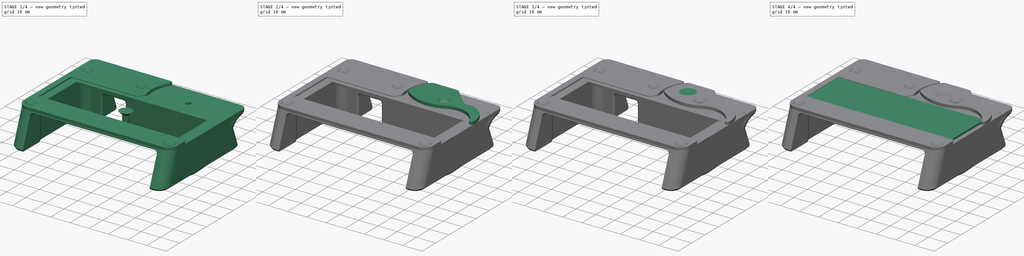
[diagram: build sequence overview — one tinted view per stage of 4, left to right]
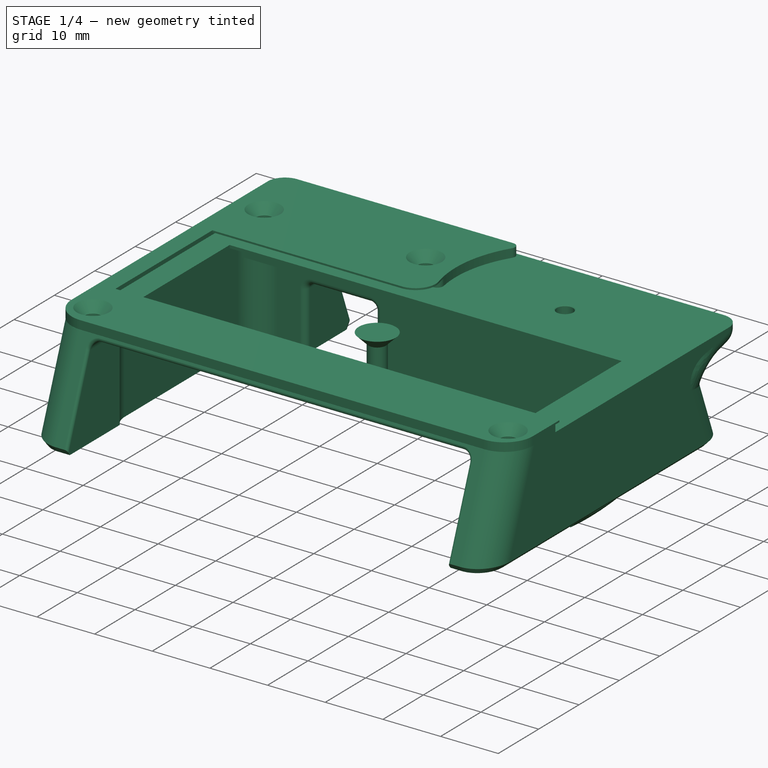
[diagram: stage 1 of 4 — iso view after this stage's code; geometry added in this stage tinted green]
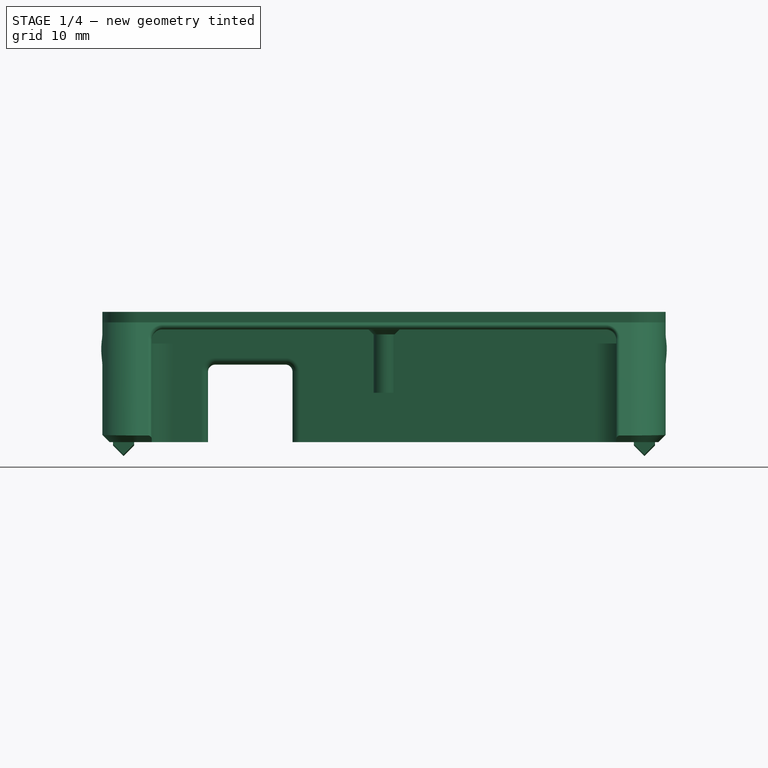
[diagram: stage 1 of 4 — front view after this stage's code; geometry added in this stage tinted green]
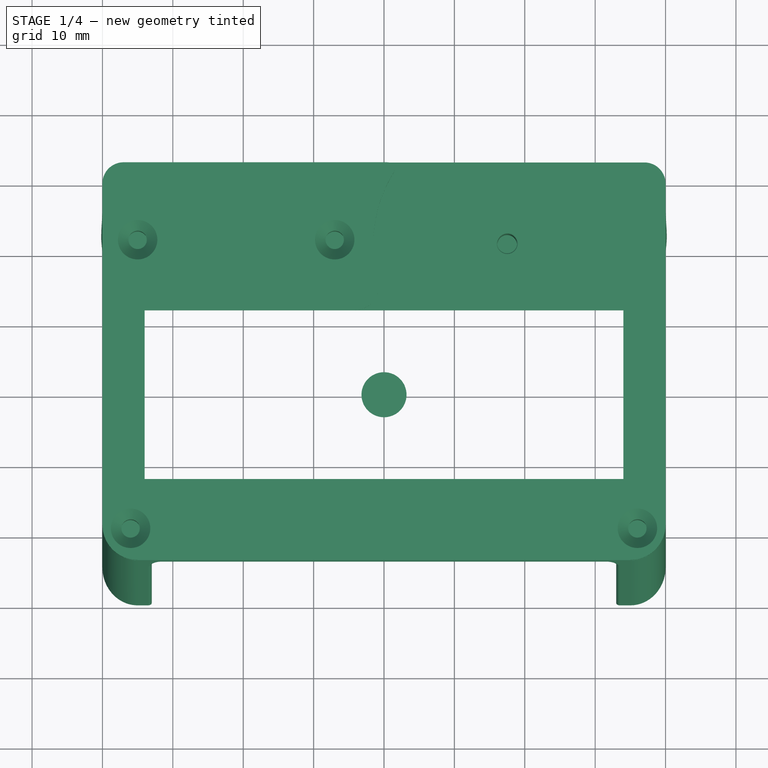
[diagram: stage 1 of 4 — top view after this stage's code; geometry added in this stage tinted green]
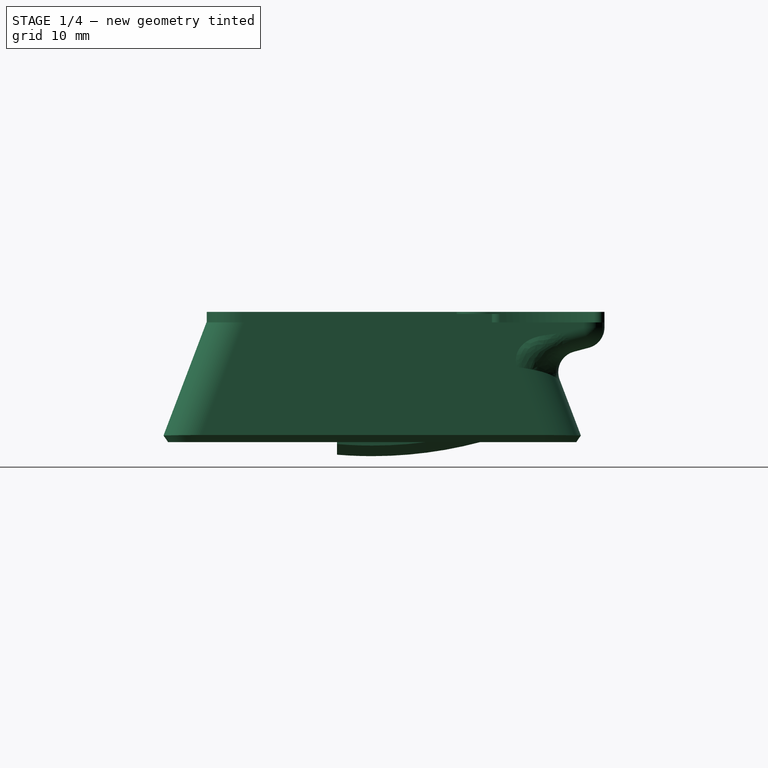
[diagram: stage 1 of 4 — right view after this stage's code; geometry added in this stage tinted green]
FCSTD DOCUMENT  (FreeCAD 0.16RUnknown)
Label: SampleFix
License: All rights reserved
LicenseURL: http://en.wikipedia.org/wiki/All_rights_reserved
objects: Part::FeaturePython×4, App::DocumentObjectGroup×3, Sketcher::SketchObject×2, Part::Cut×2, Part::Box×1, PartDesign::Revolution×1, Part::Sphere×1, PartDesign::Pad×1, Part::Fillet×1
note: 15 computed .brp shape members not serialized (recipe doc carries the construction recipe); baked Part::Feature solids carry a one-line shape summary decoded from their .brp

FEATURE [Sketcher::SketchObject] Sketch007  label="Countersunk"
  Placement = pos=(0,0,0) rot=(0.57735,0.57735,0.57735;2.0944rad)
  sketch-geometry (5):
    g0: LineSegment StartX=3.2 StartY=0 StartZ=0 EndX=1.5 EndY=-1.7 EndZ=0
    g1: LineSegment StartX=0 StartY=-10 StartZ=0 EndX=0 EndY=0 EndZ=0
    g2: LineSegment StartX=0 StartY=0 StartZ=0 EndX=3.2 EndY=0 EndZ=0
    g3: LineSegment StartX=0 StartY=-10 StartZ=0 EndX=1.5 EndY=-10 EndZ=0
    g4: LineSegment StartX=1.5 StartY=-10 StartZ=0 EndX=1.5 EndY=-1.7 EndZ=0
  constraints (14):
    c: Coincident(g1,g2)
    c: Coincident(g2,g0)
    c: Horizontal(g2)
    c: Vertical(g1)
    c: Angle(g2,g0) = 0.785398
    c: Coincident(g1,g-1)
    c: DistanceY(g0,g-1) = 1.7
    c: DistanceX(g2,g2) = 3.2
    c: Coincident(g3,g4)
    c: Vertical(g4)
    c: Horizontal(g3)
    c: Coincident(g1,g3)
    c: Coincident(g4,g0)
    c: DistanceY(g1,g1) = 10
FEATURE [PartDesign::Revolution] Revolution001  label="Countersunk001"
  Angle = 360
  Axis = (0,0,1)
  Base = (0,0,0)
  Placement = pos=(0,0,0) rot=(0.57735,0.57735,0.57735;2.0944rad)
  ReferenceAxis = -> Sketch007 [V_Axis]
  Reversed = true
  Sketch = -> Sketch007
FEATURE [Part::FeaturePython] SampleTray_01  label="SampleTray"  # a2plus imported part (geometry in sourceFile) (typed FeaturePython)
  Placement = pos=(0,0,-17) rot=(0,0,1;0rad)
  fixedPosition = true
  sourceFile = ./SampleTray.fcstd
  timeLastImport = 1.49821e+09
  updateColors = true
FEATURE [Part::FeaturePython] SampleTop_01  label="SampleTop"  # a2plus imported part (geometry in sourceFile) (typed FeaturePython)
  Placement = pos=(0,0,0) rot=(0,0,1;3.14159rad)
  fixedPosition = false
  sourceFile = ./SampleTop.fcstd
  timeLastImport = 1.49823e+09
  updateColors = true
FEATURE [App::DocumentObjectGroup] Group  label="Reference"
  Group = -> [Box001,SampleTray_01,SampleTop_01]
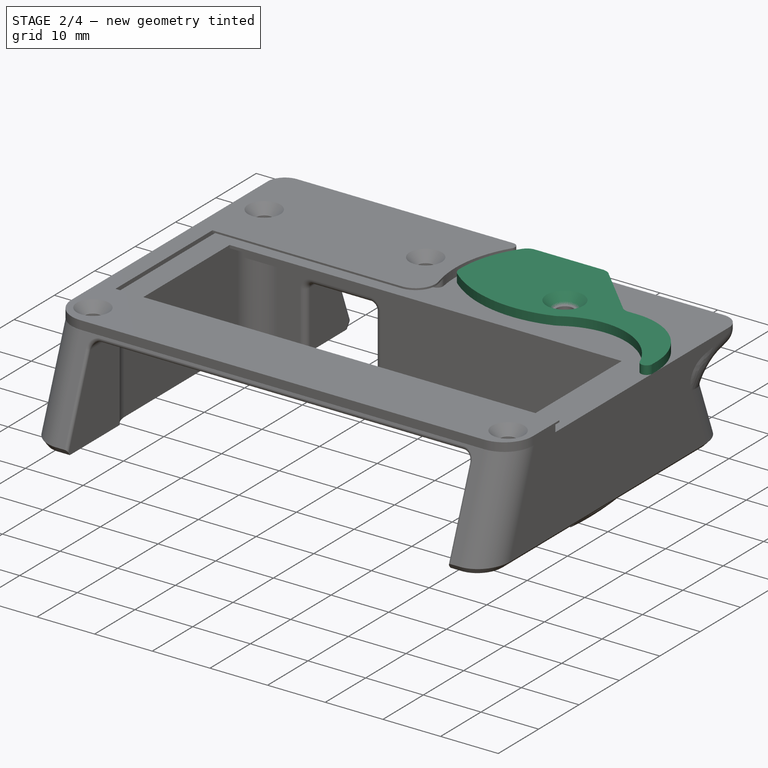
[diagram: stage 2 of 4 — iso view after this stage's code; geometry added in this stage tinted green]
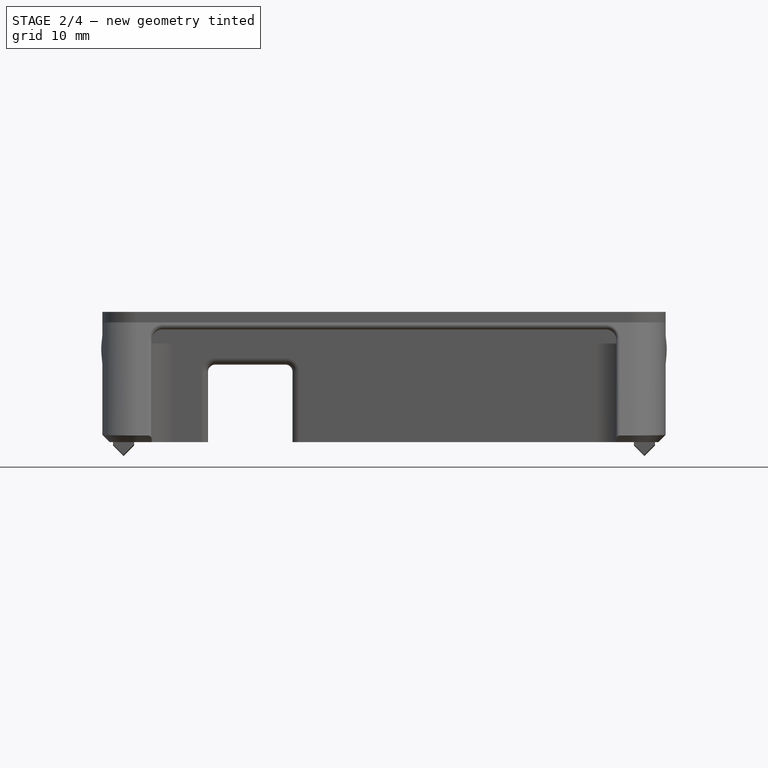
[diagram: stage 2 of 4 — front view after this stage's code; geometry added in this stage tinted green]
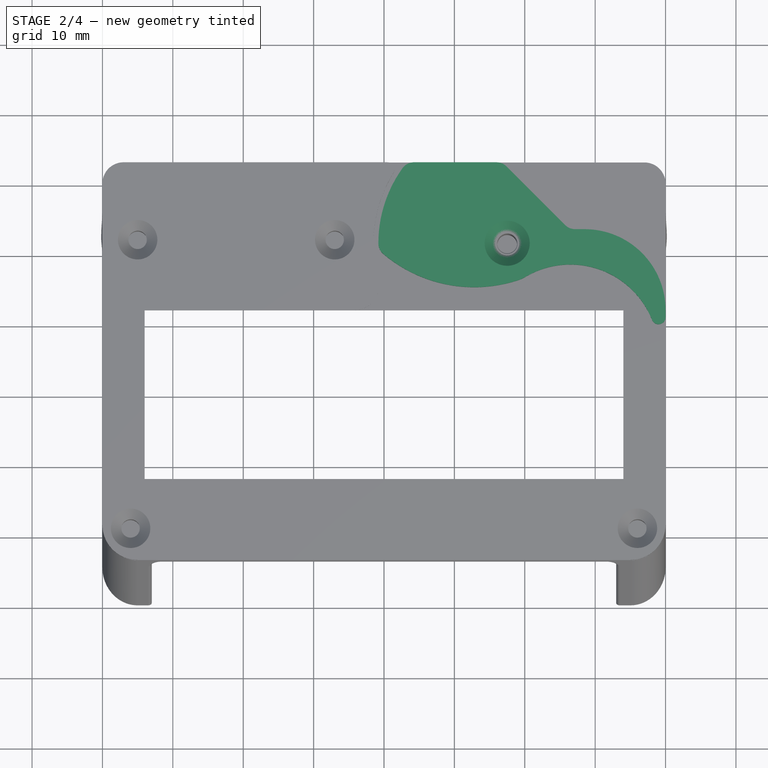
[diagram: stage 2 of 4 — top view after this stage's code; geometry added in this stage tinted green]
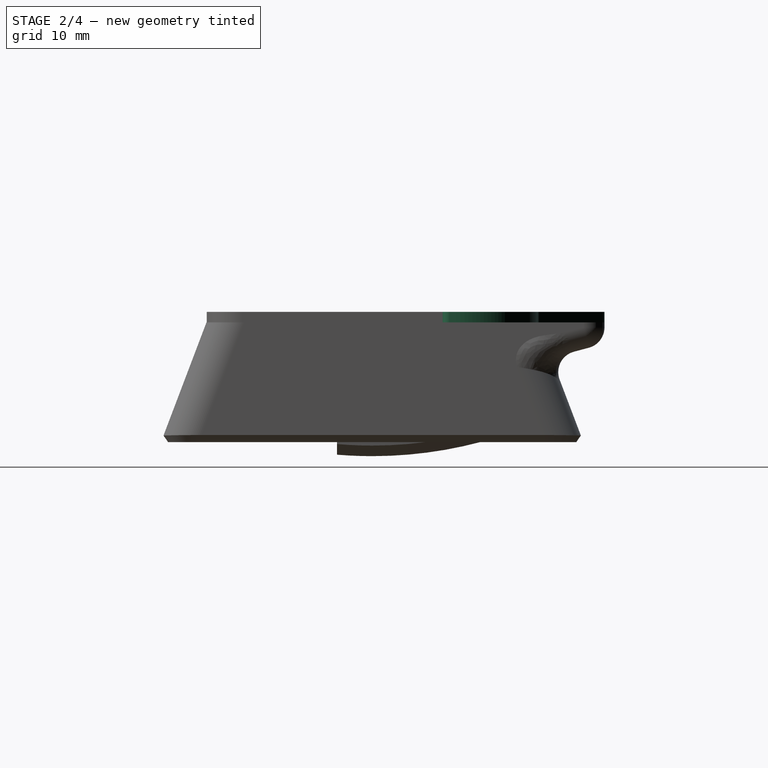
[diagram: stage 2 of 4 — right view after this stage's code; geometry added in this stage tinted green]
FEATURE [Part::FeaturePython] Clone005  label="Clone of Countersunk002"  # Draft clone (typed FeaturePython)
  Objects = -> [Revolution001]
  Placement = pos=(17.5,21.5,1.5) rot=(0.57735,0.57735,0.57735;2.0944rad)
  Scale = (1,1,1)
FEATURE [Sketcher::SketchObject] Sketch  label="Base"
  sketch-geometry (14):
    g0: ArcOfCircle CenterX=17.5 CenterY=21 CenterZ=0 NormalX=0 NormalY=0 NormalZ=1 Radius=5 StartAngle=5.02995 EndAngle=5.2506
    g1: ArcOfCircle CenterX=39 CenterY=11 CenterZ=0 NormalX=0 NormalY=0 NormalZ=1 Radius=1 StartAngle=3.52307 EndAngle=6.28319
    g2: ArcOfCircle CenterX=26.4705 CenterY=5.974 CenterZ=0 NormalX=0 NormalY=0 NormalZ=1 Radius=12.5 StartAngle=0.381483 EndAngle=2.109
    g3: LineSegment StartX=40 StartY=12 StartZ=0 EndX=40 EndY=11 EndZ=0
    g4: ArcOfCircle CenterX=28.5 CenterY=12 CenterZ=0 NormalX=0 NormalY=0 NormalZ=1 Radius=11.5 StartAngle=6.28319 EndAngle=7.85398
    g5: ArcOfCircle CenterX=12.8163 CenterY=35.25 CenterZ=0 NormalX=0 NormalY=0 NormalZ=1 Radius=20 StartAngle=4.01091 EndAngle=5.02995
    g6: LineSegment StartX=16 StartY=33 StartZ=0 EndX=4.25462 EndY=33 EndZ=0
    g7: LineSegment StartX=25.7426 StartY=24.0858 StartZ=0 EndX=17.4142 EndY=32.4142 EndZ=0
    g8: ArcOfCircle CenterX=16 CenterY=31 CenterZ=0 NormalX=0 NormalY=0 NormalZ=1 Radius=2 StartAngle=0.785398 EndAngle=1.5708
    g9: ArcOfCircle CenterX=4.25462 CenterY=31 CenterZ=0 NormalX=0 NormalY=0 NormalZ=1 Radius=2 StartAngle=1.5708 EndAngle=2.5194
    g10: ArcOfCircle CenterX=1.2 CenterY=21.5 CenterZ=0 NormalX=0 NormalY=0 NormalZ=1 Radius=2 StartAngle=3.14159 EndAngle=4.01091
    g11: ArcOfCircle CenterX=27.1569 CenterY=25.5 CenterZ=0 NormalX=0 NormalY=0 NormalZ=1 Radius=2 StartAngle=3.92699 EndAngle=4.71239
    g12: LineSegment StartX=27.1569 StartY=23.5 StartZ=0 EndX=28.5 EndY=23.5 EndZ=0
    g13: ArcOfCircle CenterX=17.5 CenterY=21.5 CenterZ=0 NormalX=0 NormalY=0 NormalZ=1 Radius=18.3 StartAngle=2.5194 EndAngle=3.14159
  constraints (49):
    c: DistanceX(g0) = 17.5
    c: DistanceY(g0) = 21
    c: Tangent(g0,g2)
    c: Coincident(g0,g2)
    c: Coincident(g2,g1)
    c: Tangent(g2,g1)
    c: DistanceX(g1) = 40
    c: Radius(g0) = 5
    c: Vertical(g3)
    c: Coincident(g3,g1)
    c: Tangent(g3,g1)
    c: Coincident(g5,g0)
    c: Tangent(g5,g0)
    c: Coincident(g4,g3)
    c: Tangent(g4,g3)
    c: DistanceY(g3,g3) = 1
    c: Radius(g2) = 12.5
    c: Horizontal(g6)
    c: Tangent(g6,g8) = -1.5708
    c: Tangent(g7,g8) = -1.5708
    c: Radius(g8) = 2
    c: DistanceX(g8) = 16
    c: DistanceY(g8) = 31
    c: Tangent(g6,g9) = -1.5708
    c: Equal(g9,g8)
    c: Coincident(g10,g5)
    c: Tangent(g10,g5)
    c: Coincident(g7,g11)
    c: Tangent(g7,g11)
    c: Horizontal(g12)
    c: Coincident(g12,g11)
    c: Coincident(g4,g12)
    c: Tangent(g11,g12)
    c: Radius(g11) = 2
    c: DistanceY(g11) = 25.5
    c: Tangent(g12,g4)
    c: Radius(g10) = 2
    c: Radius(g5) = 20
    c: Angle(g6,g7) = 2.35619
    c: DistanceX(g13) = 17.5
    c: DistanceY(g13) = 21.5
    c: Coincident(g13,g9)
    c: Coincident(g10,g13)
    c: Tangent(g10,g13)
    c: Tangent(g13,g9)
    c: Radius(g13) = 18.3
    c: DistanceY(g10) = 21.5
    c: DistanceY(g1) = 11
    c: Radius(g1) = 1
FEATURE [PartDesign::Pad] Pad003  label="Base001"
  Length = 1.5
  Length2 = 100
  Sketch = -> Sketch
  Type = 0
FEATURE [Part::Cut] Cut003  label="BoltCut"
  Base = -> Pad003
  Tool = -> Clone005
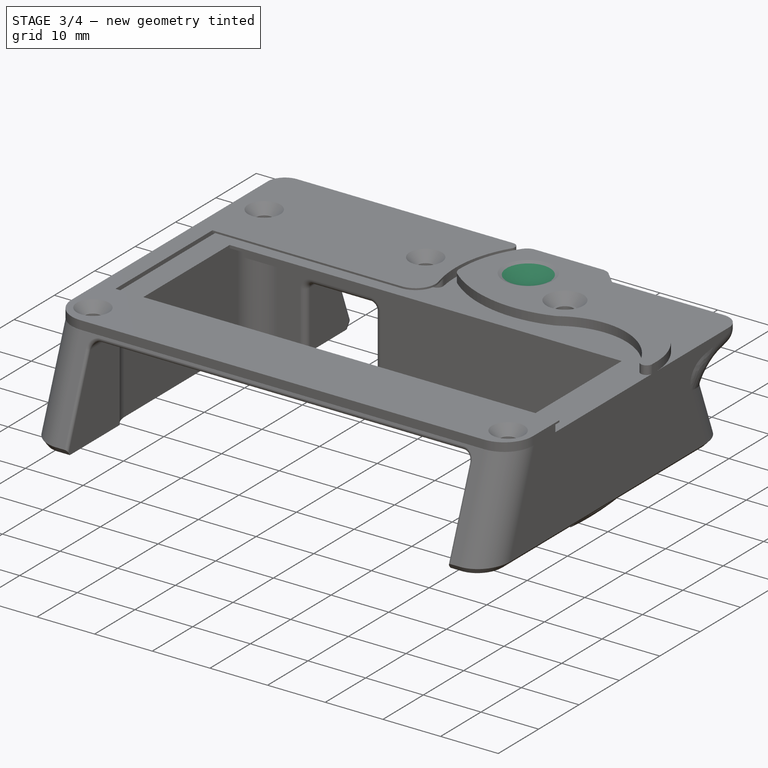
[diagram: stage 3 of 4 — iso view after this stage's code; geometry added in this stage tinted green]
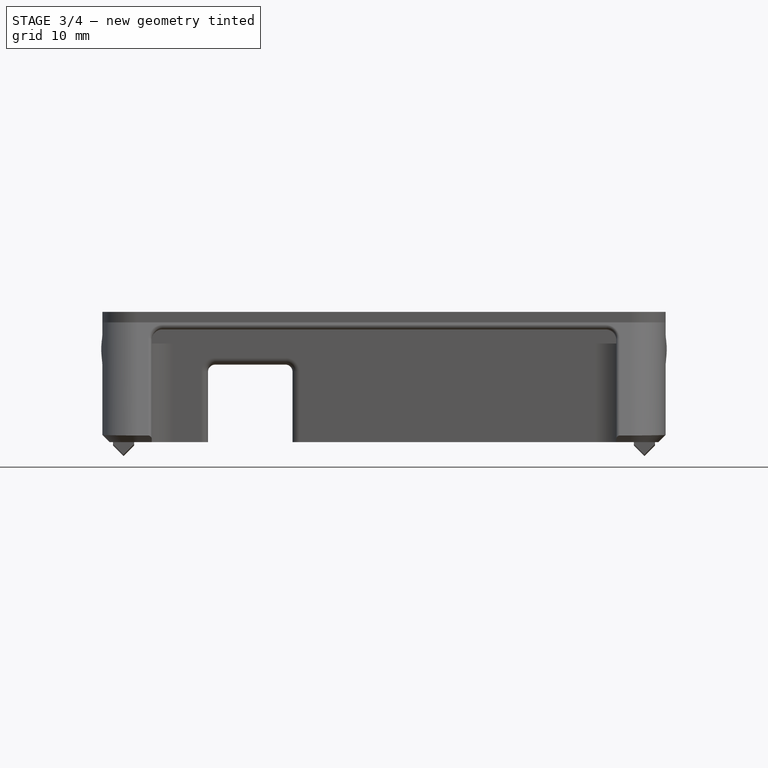
[diagram: stage 3 of 4 — front view after this stage's code; geometry added in this stage tinted green]
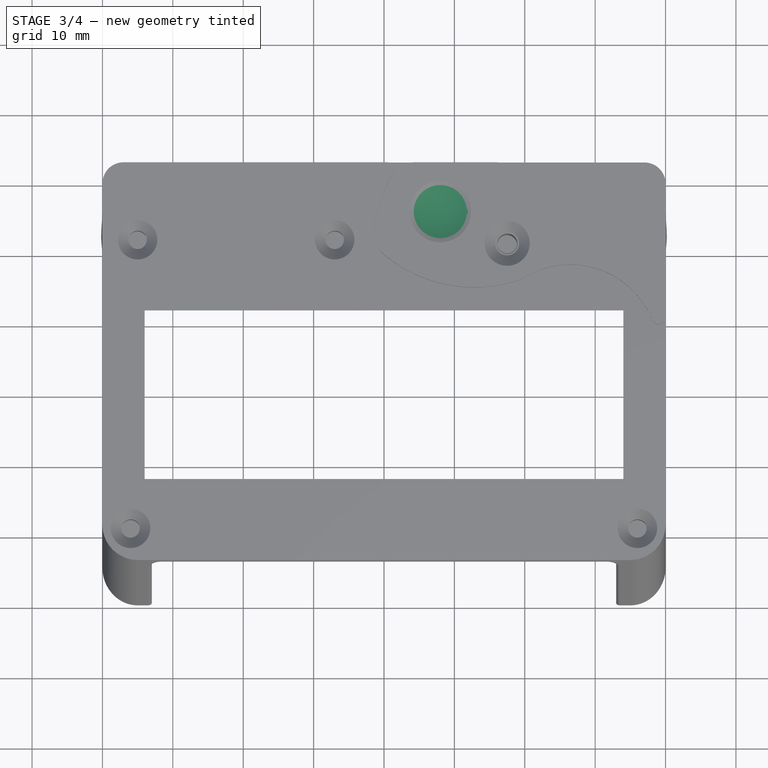
[diagram: stage 3 of 4 — top view after this stage's code; geometry added in this stage tinted green]
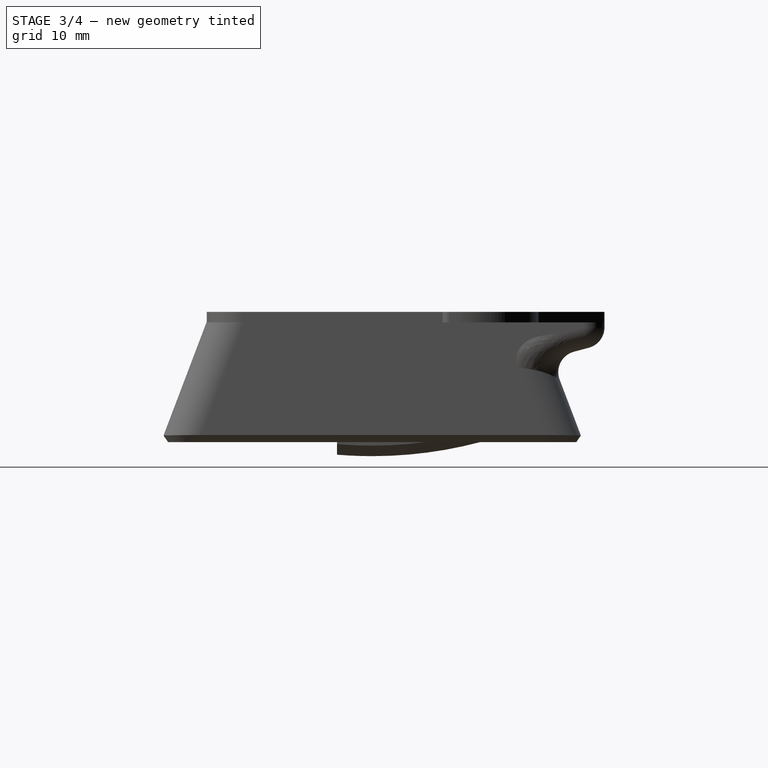
[diagram: stage 3 of 4 — right view after this stage's code; geometry added in this stage tinted green]
FEATURE [App::DocumentObjectGroup] Group001  label="BoltSrc"
  Group = -> [Revolution001]
FEATURE [Part::Sphere] Sphere
  Angle1 = -90
  Angle2 = 90
  Angle3 = 360
  Placement = pos=(8,26,10.5) rot=(0,0,1;0rad)
  Radius = 10
FEATURE [Part::Cut] Cut004  label="ThumbCut"
  Base = -> Cut003
  Tool = -> Sphere
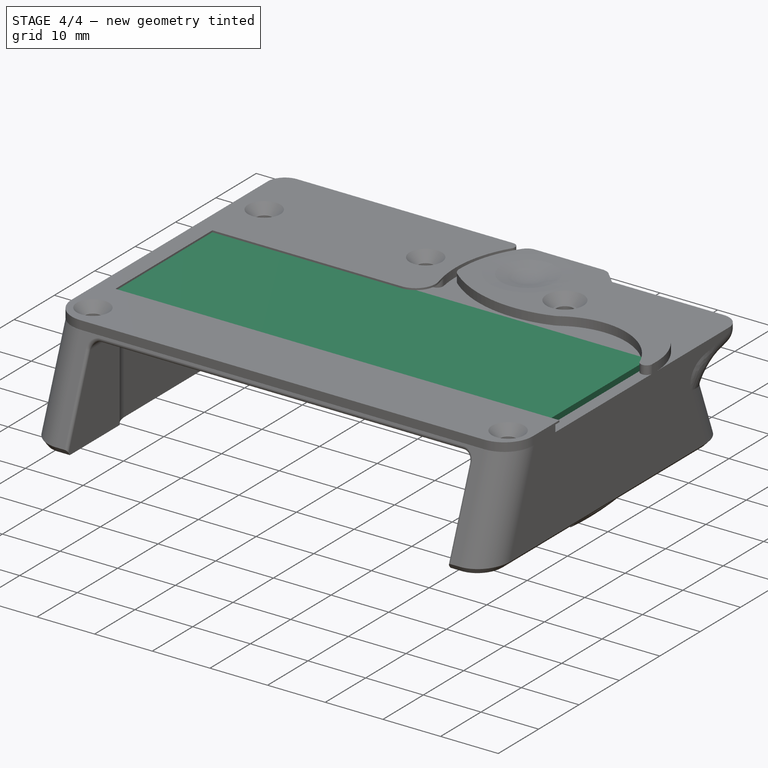
[diagram: stage 4 of 4 — iso view after this stage's code; geometry added in this stage tinted green]
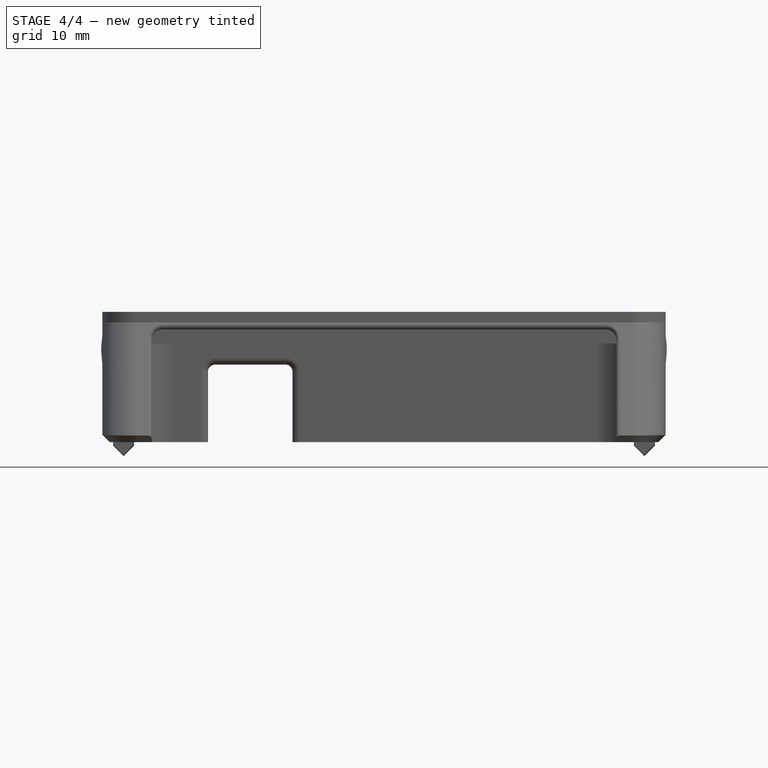
[diagram: stage 4 of 4 — front view after this stage's code; geometry added in this stage tinted green]
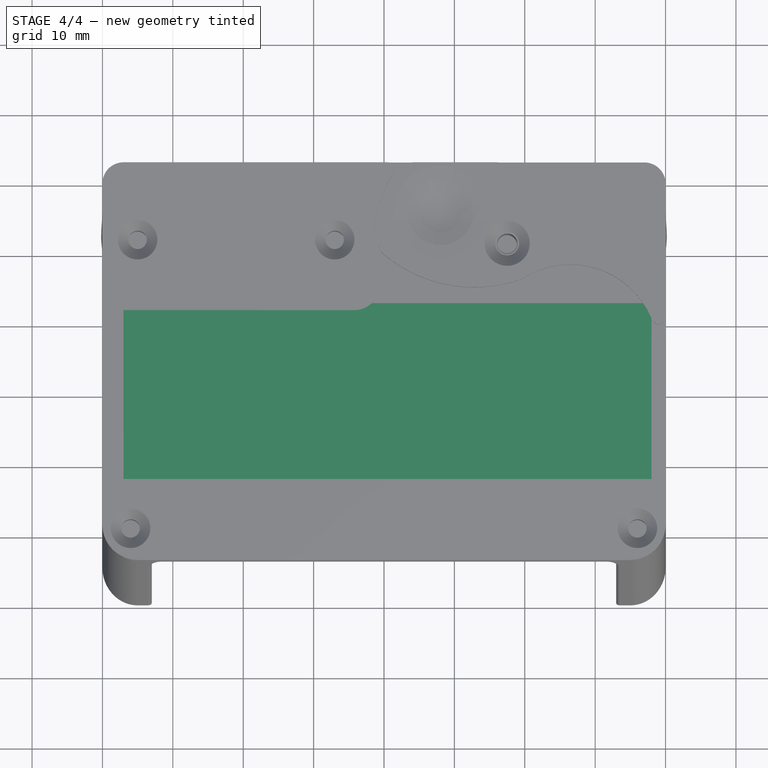
[diagram: stage 4 of 4 — top view after this stage's code; geometry added in this stage tinted green]
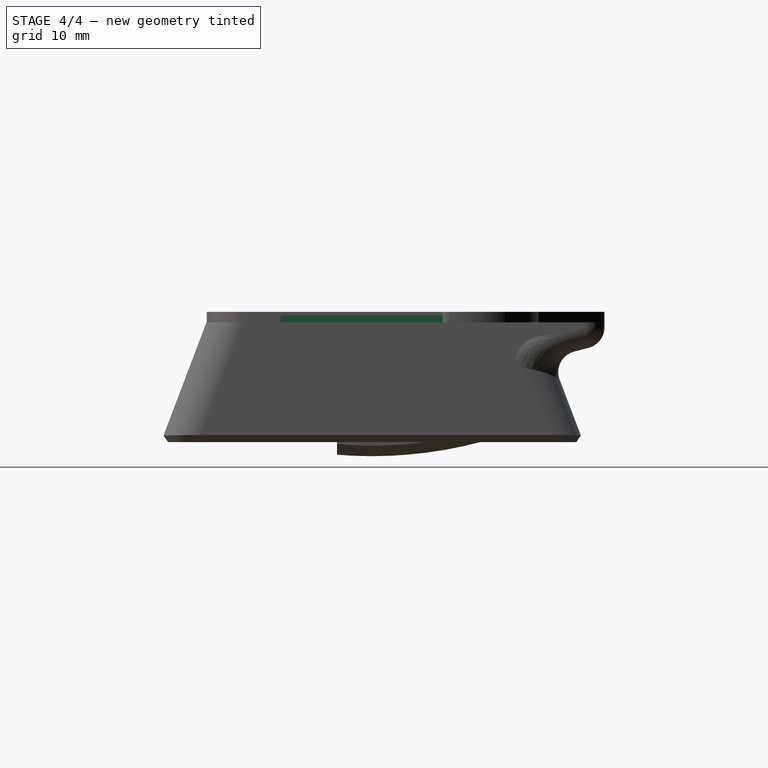
[diagram: stage 4 of 4 — right view after this stage's code; geometry added in this stage tinted green]
FEATURE [Part::Box] Box001  label="SampleMaster"
  Height = 1
  Length = 26
  Placement = pos=(38,-13,0) rot=(0,0,1;1.5708rad)
  Width = 76
FEATURE [Part::Fillet] Fillet  label="NiceFillet"
  Base = -> Cut004
  Edges = 1 edges r=12: [Edge34]
FEATURE [App::DocumentObjectGroup] Group003  label="src"
  Group = -> [Cut004,Fillet]
FEATURE [Part::FeaturePython] Clone  label="SampleFix"  # Draft clone (typed FeaturePython)
  Objects = -> [Fillet]
  Scale = (1,1,1)
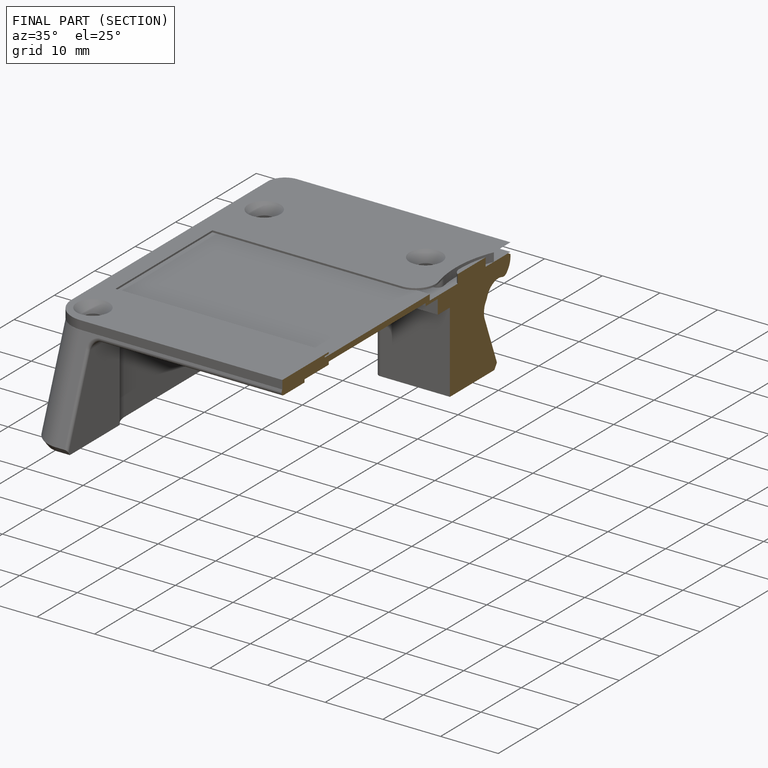
[diagram: finished part — half-section view (interior)]
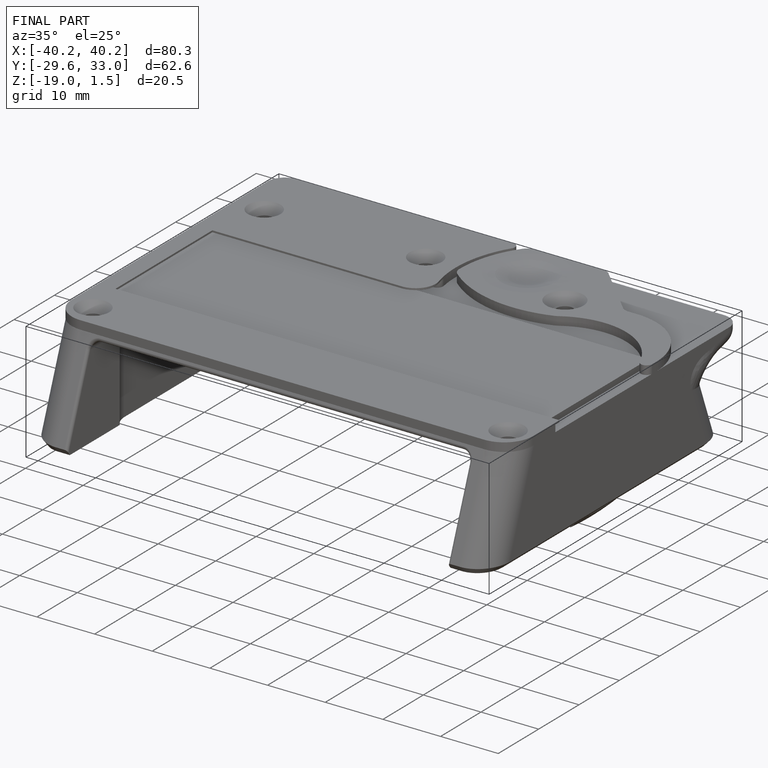
[diagram: finished part — iso view with bounding-box wireframe]
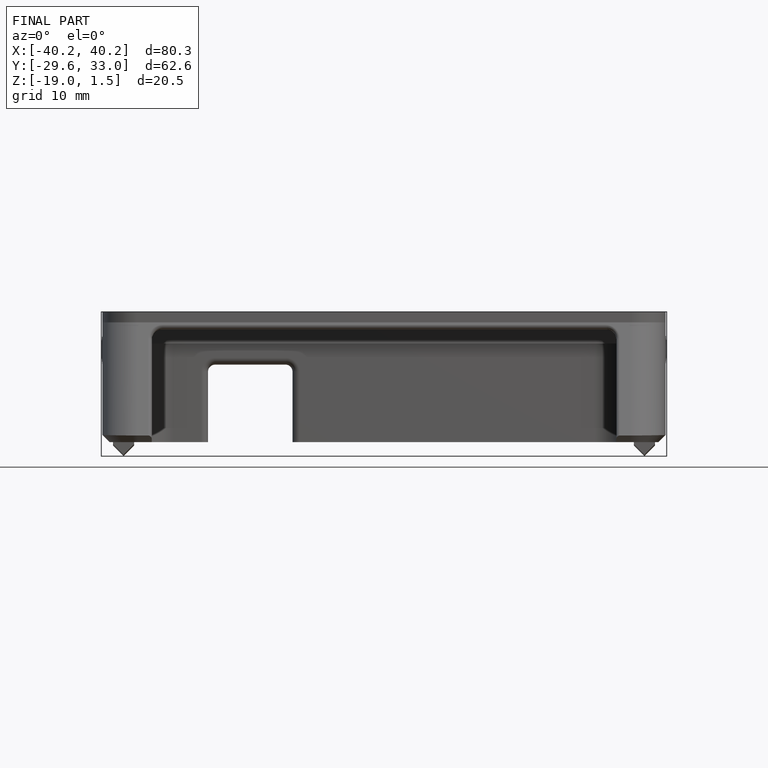
[diagram: finished part — front view with bounding-box wireframe]
